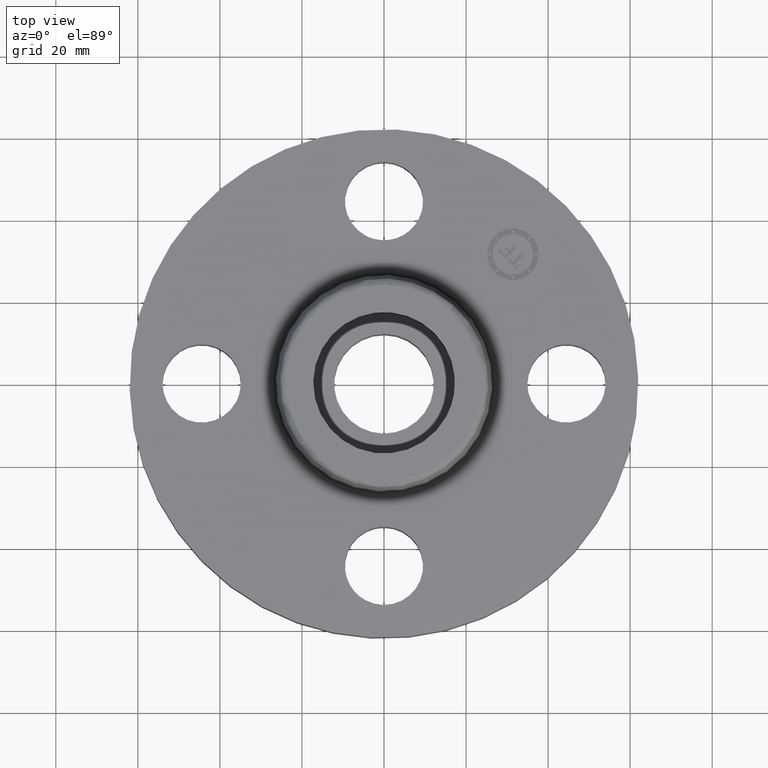
[diagram: clean part render]
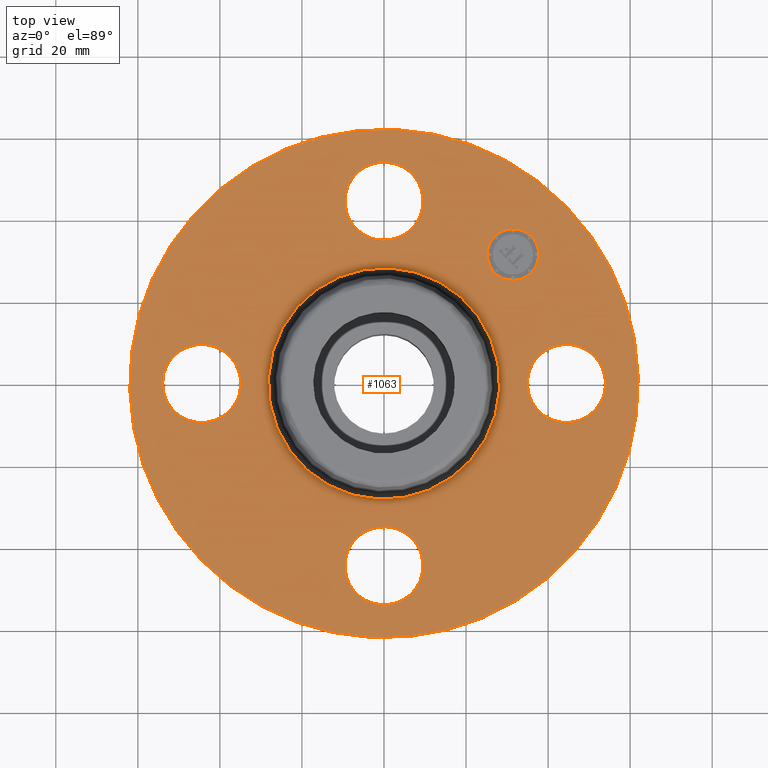
[diagram: same view with one face highlighted and labeled with its STEP entity id]
A machine part, top view. The second image highlights one B-rep face of the part: STEP entity #1063.
In plain terms, the highlighted planar face has unit normal (0, 0, -1).
Its self-contained STEP definition (entity closure, byte-faithful):
#603=AXIS2_PLACEMENT_3D('Circle Axis2P3D',#601,#602,$) ;
#641=AXIS2_PLACEMENT_3D('Circle Axis2P3D',#639,#640,$) ;
#672=AXIS2_PLACEMENT_3D('Circle Axis2P3D',#670,#671,$) ;
#703=AXIS2_PLACEMENT_3D('Circle Axis2P3D',#701,#702,$) ;
#741=AXIS2_PLACEMENT_3D('Circle Axis2P3D',#739,#740,$) ;
#815=AXIS2_PLACEMENT_3D('Circle Axis2P3D',#813,#814,$) ;
#889=AXIS2_PLACEMENT_3D('Circle Axis2P3D',#887,#888,$) ;
#963=AXIS2_PLACEMENT_3D('Circle Axis2P3D',#961,#962,$) ;
#1019=AXIS2_PLACEMENT_3D('Plane Axis2P3D',#1016,#1017,#1018) ;
#1047=AXIS2_PLACEMENT_3D('Circle Axis2P3D',#1045,#1046,$) ;
#1056=AXIS2_PLACEMENT_3D('Circle Axis2P3D',#1054,#1055,$) ;
#601=CARTESIAN_POINT('Axis2P3D Location',(0.,0.,0.690000000003)) ;
#605=CARTESIAN_POINT('Vertex',(0.53232821848,0.974420267848,0.690000000003)) ;
#607=CARTESIAN_POINT('Vertex',(-0.532328218482,-0.974420267852,0.690000000003)) ;
#639=CARTESIAN_POINT('Axis2P3D Location',(0.,0.,0.690000000003)) ;
#667=CARTESIAN_POINT('Vertex',(-1.1697983142,-2.14130145102,0.690000000004)) ;
#670=CARTESIAN_POINT('Axis2P3D Location',(0.,0.,0.690000000004)) ;
#674=CARTESIAN_POINT('Vertex',(1.1697983142,2.14130145102,0.690000000004)) ;
#701=CARTESIAN_POINT('Axis2P3D Location',(0.,0.,0.690000000004)) ;
#729=CARTESIAN_POINT('Vertex',(2.07909346074,-0.179784576955,0.690000000003)) ;
#736=CARTESIAN_POINT('Vertex',(1.4209065393,0.179784576977,0.689999999988)) ;
#739=CARTESIAN_POINT('Axis2P3D Location',(1.75000000001,0.,0.689999999988)) ;
#764=CARTESIAN_POINT('Control Point',(1.4209065393,0.179784576977,0.690000000003)) ;
#765=CARTESIAN_POINT('Control Point',(1.44914703461,0.231478456903,0.690000000002)) ;
#766=CARTESIAN_POINT('Control Point',(1.48753759951,0.27762732854,0.690000000002)) ;
#767=CARTESIAN_POINT('Control Point',(1.53463466834,0.315564920645,0.690000000001)) ;
#768=CARTESIAN_POINT('Control Point',(1.64116640576,0.370929207243,0.689999999999)) ;
#769=CARTESIAN_POINT('Control Point',(1.76072322347,0.38190110985,0.689999999998)) ;
#770=CARTESIAN_POINT('Control Point',(1.82085180885,0.375424381748,0.689999999997)) ;
#771=CARTESIAN_POINT('Control Point',(1.93532958528,0.339243530298,0.689999999996)) ;
#772=CARTESIAN_POINT('Control Point',(2.02762732855,0.262462400496,0.689999999994)) ;
#773=CARTESIAN_POINT('Control Point',(2.06556492066,0.215365331668,0.689999999993)) ;
#774=CARTESIAN_POINT('Control Point',(2.12092920725,0.108833594252,0.689999999992)) ;
#775=CARTESIAN_POINT('Control Point',(2.13190110986,-0.0107232234562,0.689999999991)) ;
#776=CARTESIAN_POINT('Control Point',(2.12542438176,-0.0708518088378,0.68999999999)) ;
#777=CARTESIAN_POINT('Control Point',(2.10733395603,-0.128090697051,0.689999999989)) ;
#778=CARTESIAN_POINT('Control Point',(2.07909346072,-0.179784576977,0.689999999988)) ;
#803=CARTESIAN_POINT('Vertex',(0.179784576973,-1.42090653933,0.690000000003)) ;
#810=CARTESIAN_POINT('Vertex',(-0.179784576977,-2.07909346072,0.689999999988)) ;
#813=CARTESIAN_POINT('Axis2P3D Location',(-1.72584639625E-016,-1.75000000001,0.689999999988)) ;
#838=CARTESIAN_POINT('Control Point',(-0.179784576977,-2.07909346072,0.690000000003)) ;
#839=CARTESIAN_POINT('Control Point',(-0.231478456903,-2.05085296541,0.690000000002)) ;
#840=CARTESIAN_POINT('Control Point',(-0.27762732854,-2.01246240051,0.690000000002)) ;
#841=CARTESIAN_POINT('Control Point',(-0.315564920645,-1.96536533168,0.690000000001)) ;
#842=CARTESIAN_POINT('Control Point',(-0.370929207243,-1.85883359426,0.689999999999)) ;
#843=CARTESIAN_POINT('Control Point',(-0.38190110985,-1.73927677655,0.689999999998)) ;
#844=CARTESIAN_POINT('Control Point',(-0.375424381748,-1.67914819117,0.689999999997)) ;
#845=CARTESIAN_POINT('Control Point',(-0.339243530298,-1.56467041474,0.689999999996)) ;
#846=CARTESIAN_POINT('Control Point',(-0.262462400496,-1.47237267147,0.689999999994)) ;
#847=CARTESIAN_POINT('Control Point',(-0.215365331668,-1.43443507936,0.689999999993)) ;
#848=CARTESIAN_POINT('Control Point',(-0.108833594252,-1.37907079277,0.689999999992)) ;
#849=CARTESIAN_POINT('Control Point',(0.0107232234562,-1.36809889016,0.689999999991)) ;
#850=CARTESIAN_POINT('Control Point',(0.0708518088378,-1.37457561826,0.68999999999)) ;
#851=CARTESIAN_POINT('Control Point',(0.128090697051,-1.39266604399,0.689999999989)) ;
#852=CARTESIAN_POINT('Control Point',(0.179784576977,-1.4209065393,0.689999999988)) ;
#877=CARTESIAN_POINT('Vertex',(-1.42090653927,-0.179784576955,0.690000000003)) ;
#884=CARTESIAN_POINT('Vertex',(-2.07909346072,0.179784576978,0.689999999988)) ;
#887=CARTESIAN_POINT('Axis2P3D Location',(-1.75000000001,-2.14313189852E-016,0.689999999988)) ;
#912=CARTESIAN_POINT('Control Point',(-2.07909346072,0.179784576978,0.690000000003)) ;
#913=CARTESIAN_POINT('Control Point',(-2.05085296541,0.231478456903,0.690000000002)) ;
#914=CARTESIAN_POINT('Control Point',(-2.01246240051,0.277627328541,0.690000000002)) ;
#915=CARTESIAN_POINT('Control Point',(-1.96536533168,0.315564920646,0.690000000001)) ;
#916=CARTESIAN_POINT('Control Point',(-1.85883359426,0.370929207244,0.689999999999)) ;
#917=CARTESIAN_POINT('Control Point',(-1.73927677655,0.381901109851,0.689999999998)) ;
#918=CARTESIAN_POINT('Control Point',(-1.67914819117,0.375424381749,0.689999999997)) ;
#919=CARTESIAN_POINT('Control Point',(-1.56467041474,0.339243530299,0.689999999996)) ;
#920=CARTESIAN_POINT('Control Point',(-1.47237267147,0.262462400496,0.689999999994)) ;
#921=CARTESIAN_POINT('Control Point',(-1.43443507936,0.215365331668,0.689999999993)) ;
#922=CARTESIAN_POINT('Control Point',(-1.37907079277,0.108833594252,0.689999999992)) ;
#923=CARTESIAN_POINT('Control Point',(-1.36809889016,-0.0107232234563,0.689999999991)) ;
#924=CARTESIAN_POINT('Control Point',(-1.37457561826,-0.070851808838,0.68999999999)) ;
#925=CARTESIAN_POINT('Control Point',(-1.39266604399,-0.128090697052,0.689999999989)) ;
#926=CARTESIAN_POINT('Control Point',(-1.4209065393,-0.179784576977,0.689999999988)) ;
#951=CARTESIAN_POINT('Vertex',(-0.179784576973,1.42090653929,0.690000000003)) ;
#958=CARTESIAN_POINT('Vertex',(0.179784576977,2.07909346072,0.689999999988)) ;
#961=CARTESIAN_POINT('Axis2P3D Location',(-3.21469784777E-016,1.75000000001,0.689999999988)) ;
#986=CARTESIAN_POINT('Control Point',(0.179784576977,2.07909346072,0.690000000003)) ;
#987=CARTESIAN_POINT('Control Point',(0.231478456903,2.05085296541,0.690000000002)) ;
#988=CARTESIAN_POINT('Control Point',(0.27762732854,2.01246240051,0.690000000002)) ;
#989=CARTESIAN_POINT('Control Point',(0.315564920645,1.96536533168,0.690000000001)) ;
#990=CARTESIAN_POINT('Control Point',(0.370929207243,1.85883359426,0.689999999999)) ;
#991=CARTESIAN_POINT('Control Point',(0.38190110985,1.73927677655,0.689999999998)) ;
#992=CARTESIAN_POINT('Control Point',(0.375424381748,1.67914819117,0.689999999997)) ;
#993=CARTESIAN_POINT('Control Point',(0.339243530298,1.56467041474,0.689999999996)) ;
#994=CARTESIAN_POINT('Control Point',(0.262462400496,1.47237267147,0.689999999994)) ;
#995=CARTESIAN_POINT('Control Point',(0.215365331668,1.43443507936,0.689999999993)) ;
#996=CARTESIAN_POINT('Control Point',(0.108833594252,1.37907079277,0.689999999992)) ;
#997=CARTESIAN_POINT('Control Point',(-0.0107232234562,1.36809889016,0.689999999991)) ;
#998=CARTESIAN_POINT('Control Point',(-0.0708518088378,1.37457561826,0.68999999999)) ;
#999=CARTESIAN_POINT('Control Point',(-0.128090697051,1.39266604399,0.689999999989)) ;
#1000=CARTESIAN_POINT('Control Point',(-0.179784576977,1.4209065393,0.689999999988)) ;
#1016=CARTESIAN_POINT('Axis2P3D Location',(0.,2.44000000001,0.690000000003)) ;
#1045=CARTESIAN_POINT('Axis2P3D Location',(1.23743686708,1.23743686702,0.690000000003)) ;
#1049=CARTESIAN_POINT('Vertex',(1.06242793876,1.41244579541,0.690000000003)) ;
#1051=CARTESIAN_POINT('Vertex',(1.41244579547,1.06242793871,0.690000000003)) ;
#1054=CARTESIAN_POINT('Axis2P3D Location',(1.23743686711,1.23743686706,0.690000000003)) ;
#602=DIRECTION('Axis2P3D Direction',(-0.,0.,-0.0393700787402)) ;
#640=DIRECTION('Axis2P3D Direction',(-0.,0.,-0.0393700787402)) ;
#671=DIRECTION('Axis2P3D Direction',(0.,0.,-0.0393700787402)) ;
#702=DIRECTION('Axis2P3D Direction',(0.,0.,-0.0393700787402)) ;
#740=DIRECTION('Axis2P3D Direction',(0.,-0.,-0.0393700787402)) ;
#814=DIRECTION('Axis2P3D Direction',(0.,0.,-0.0393700787402)) ;
#888=DIRECTION('Axis2P3D Direction',(0.,-0.,-0.0393700787402)) ;
#962=DIRECTION('Axis2P3D Direction',(-0.,0.,-0.0393700787402)) ;
#1017=DIRECTION('Axis2P3D Direction',(0.,0.,-0.0393700787402)) ;
#1018=DIRECTION('Axis2P3D XDirection',(0.0393700787402,0.,0.)) ;
#1046=DIRECTION('Axis2P3D Direction',(0.,0.,-0.0393700787402)) ;
#1055=DIRECTION('Axis2P3D Direction',(0.,0.,-0.0393700787402)) ;
#1022=ORIENTED_EDGE('',*,*,#705,.F.) ;
#1023=ORIENTED_EDGE('',*,*,#676,.F.) ;
#1026=ORIENTED_EDGE('',*,*,#779,.T.) ;
#1027=ORIENTED_EDGE('',*,*,#743,.T.) ;
#1030=ORIENTED_EDGE('',*,*,#643,.T.) ;
#1031=ORIENTED_EDGE('',*,*,#609,.T.) ;
#1034=ORIENTED_EDGE('',*,*,#853,.T.) ;
#1035=ORIENTED_EDGE('',*,*,#817,.T.) ;
#1038=ORIENTED_EDGE('',*,*,#927,.T.) ;
#1039=ORIENTED_EDGE('',*,*,#891,.T.) ;
#1042=ORIENTED_EDGE('',*,*,#1001,.T.) ;
#1043=ORIENTED_EDGE('',*,*,#965,.T.) ;
#1060=ORIENTED_EDGE('',*,*,#1053,.T.) ;
#1061=ORIENTED_EDGE('',*,*,#1058,.T.) ;
#1028=FACE_BOUND('',#1025,.T.) ;
#1032=FACE_BOUND('',#1029,.T.) ;
#1036=FACE_BOUND('',#1033,.T.) ;
#1040=FACE_BOUND('',#1037,.T.) ;
#1044=FACE_BOUND('',#1041,.T.) ;
#1062=FACE_BOUND('',#1059,.T.) ;
#1063=ADVANCED_FACE('PartBody',(#1024,#1028,#1032,#1036,#1040,#1044,#1062),#1020,.F.) ;
#763=B_SPLINE_CURVE_WITH_KNOTS('',5,(#764,#765,#766,#767,#768,#769,#770,#771,#772,#773,#774,#775,#776,#777,#778),.UNSPECIFIED.,.F.,.U.,(6,3,3,3,6),(-14.9618350128,-7.48091750638,0.,7.48091750638,14.9618350128),.UNSPECIFIED.) ;
#837=B_SPLINE_CURVE_WITH_KNOTS('',5,(#838,#839,#840,#841,#842,#843,#844,#845,#846,#847,#848,#849,#850,#851,#852),.UNSPECIFIED.,.F.,.U.,(6,3,3,3,6),(-14.9618350128,-7.48091750638,0.,7.48091750638,14.9618350128),.UNSPECIFIED.) ;
#911=B_SPLINE_CURVE_WITH_KNOTS('',5,(#912,#913,#914,#915,#916,#917,#918,#919,#920,#921,#922,#923,#924,#925,#926),.UNSPECIFIED.,.F.,.U.,(6,3,3,3,6),(-14.9618350128,-7.4809175064,0.,7.4809175064,14.9618350128),.UNSPECIFIED.) ;
#985=B_SPLINE_CURVE_WITH_KNOTS('',5,(#986,#987,#988,#989,#990,#991,#992,#993,#994,#995,#996,#997,#998,#999,#1000),.UNSPECIFIED.,.F.,.U.,(6,3,3,3,6),(-14.9618350128,-7.48091750638,0.,7.48091750638,14.9618350128),.UNSPECIFIED.) ;
#604=CIRCLE('generated circle',#603,1.11034597788) ;
#642=CIRCLE('generated circle',#641,1.11034597788) ;
#673=CIRCLE('generated circle',#672,2.44000000001) ;
#704=CIRCLE('generated circle',#703,2.44000000001) ;
#742=CIRCLE('generated circle',#741,0.375000000001) ;
#816=CIRCLE('generated circle',#815,0.375000000001) ;
#890=CIRCLE('generated circle',#889,0.375000000002) ;
#964=CIRCLE('generated circle',#963,0.375000000001) ;
#1048=CIRCLE('generated circle',#1047,0.247500000012) ;
#1057=CIRCLE('generated circle',#1056,0.247500000012) ;
#609=EDGE_CURVE('',#606,#608,#604,.T.) ;
#643=EDGE_CURVE('',#608,#606,#642,.T.) ;
#676=EDGE_CURVE('',#668,#675,#673,.T.) ;
#705=EDGE_CURVE('',#675,#668,#704,.T.) ;
#743=EDGE_CURVE('',#730,#737,#742,.T.) ;
#779=EDGE_CURVE('',#737,#730,#763,.T.) ;
#817=EDGE_CURVE('',#804,#811,#816,.T.) ;
#853=EDGE_CURVE('',#811,#804,#837,.T.) ;
#891=EDGE_CURVE('',#878,#885,#890,.T.) ;
#927=EDGE_CURVE('',#885,#878,#911,.T.) ;
#965=EDGE_CURVE('',#952,#959,#964,.T.) ;
#1001=EDGE_CURVE('',#959,#952,#985,.T.) ;
#1053=EDGE_CURVE('',#1050,#1052,#1048,.T.) ;
#1058=EDGE_CURVE('',#1052,#1050,#1057,.T.) ;
#1021=EDGE_LOOP('',(#1022,#1023)) ;
#1025=EDGE_LOOP('',(#1026,#1027)) ;
#1029=EDGE_LOOP('',(#1030,#1031)) ;
#1033=EDGE_LOOP('',(#1034,#1035)) ;
#1037=EDGE_LOOP('',(#1038,#1039)) ;
#1041=EDGE_LOOP('',(#1042,#1043)) ;
#1059=EDGE_LOOP('',(#1060,#1061)) ;
#1024=FACE_OUTER_BOUND('',#1021,.T.) ;
#1020=PLANE('',#1019) ;
#606=VERTEX_POINT('',#605) ;
#608=VERTEX_POINT('',#607) ;
#668=VERTEX_POINT('',#667) ;
#675=VERTEX_POINT('',#674) ;
#730=VERTEX_POINT('',#729) ;
#737=VERTEX_POINT('',#736) ;
#804=VERTEX_POINT('',#803) ;
#811=VERTEX_POINT('',#810) ;
#878=VERTEX_POINT('',#877) ;
#885=VERTEX_POINT('',#884) ;
#952=VERTEX_POINT('',#951) ;
#959=VERTEX_POINT('',#958) ;
#1050=VERTEX_POINT('',#1049) ;
#1052=VERTEX_POINT('',#1051) ;